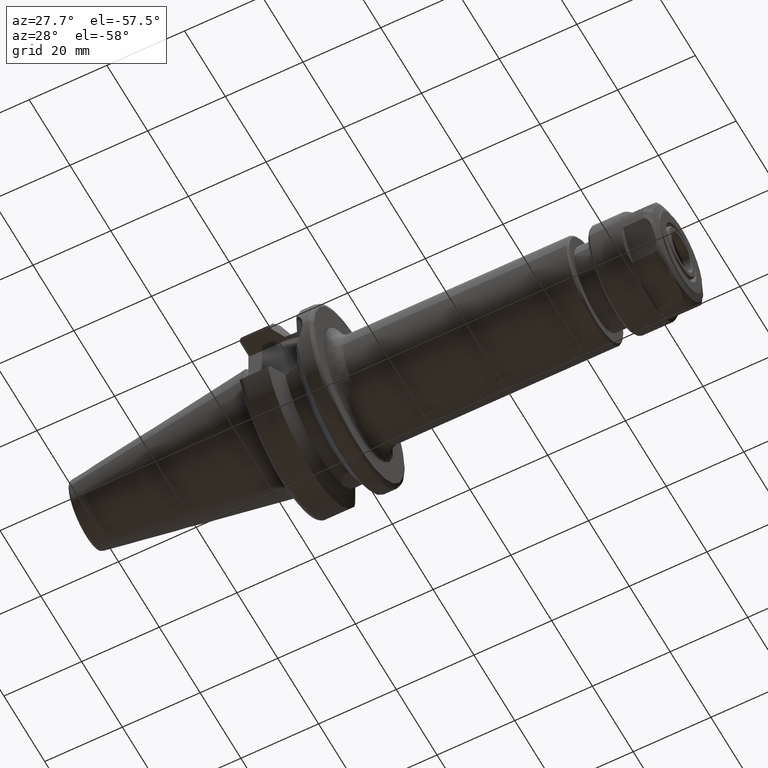
[diagram: clean part render]
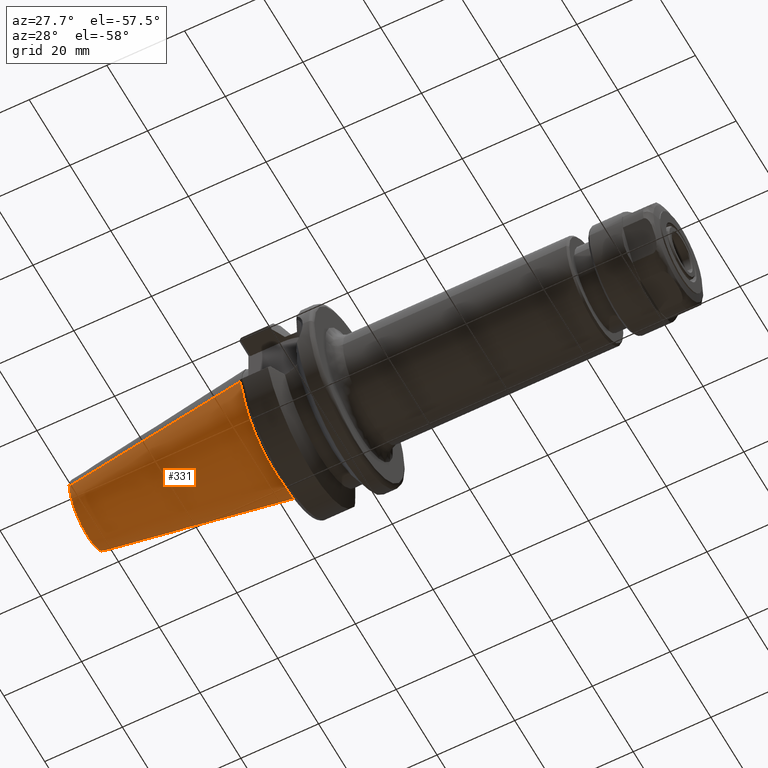
[diagram: same view with one face highlighted and labeled with its STEP entity id]
A machine part, auxiliary view. The second image highlights one B-rep face of the part: STEP entity #331.
In plain terms, the highlighted face is a freeform B-spline surface patch.
Its self-contained STEP definition (entity closure, byte-faithful):
#331=ADVANCED_FACE('',(#1846),#1845,.T.);
#1845=( BOUNDED_SURFACE() B_SPLINE_SURFACE( 2,1,((#3554,#3555),(#3556,#3557),(#3558,#3559),(#3560,#3561),(#3562,#3563)), .UNSPECIFIED.,.F.,.F.,.F.) B_SPLINE_SURFACE_WITH_KNOTS((3,2,3),(2,2),(0.00000000000E+00,5.00000000000E-01,1.00000000000E+00),(0.00000000000E+00,1.00000000000E+00), .UNSPECIFIED. ) GEOMETRIC_REPRESENTATION_ITEM() RATIONAL_B_SPLINE_SURFACE(((1.00000000000E+00,1.00000000000E+00),(7.07106781187E-01,7.07106781187E-01),(1.00000000000E+00,1.00000000000E+00),(7.07106781187E-01,7.07106781187E-01),(1.00000000000E+00,1.00000000000E+00))) REPRESENTATION_ITEM('') SURFACE() );
#1846=FACE_OUTER_BOUND('',#3564,.T.);
#3554=CARTESIAN_POINT('',(-4.79722863724E+01,-8.87898740389E+00,-2.17472470077E-15));
#3555=CARTESIAN_POINT('',(-1.00000000003E-04,-1.58750000000E+01,-3.88825358729E-15));
#3556=CARTESIAN_POINT('',(-4.79722863724E+01,-8.87898740389E+00,-8.87898740389E+00));
#3557=CARTESIAN_POINT('',(-1.00000000003E-04,-1.58750000000E+01,-1.58750000000E+01));
#3558=CARTESIAN_POINT('',(-4.79722863724E+01,1.63104352558E-15,-8.87898740389E+00));
#3559=CARTESIAN_POINT('',(-1.00000000003E-04,2.91619019047E-15,-1.58750000000E+01));
#3560=CARTESIAN_POINT('',(-4.79722863724E+01,8.87898740389E+00,-8.87898740389E+00));
#3561=CARTESIAN_POINT('',(-1.00000000003E-04,1.58750000000E+01,-1.58750000000E+01));
#3562=CARTESIAN_POINT('',(-4.79722863724E+01,8.87898740389E+00,1.08736235038E-15));
#3563=CARTESIAN_POINT('',(-1.00000000003E-04,1.58750000000E+01,1.94412679365E-15));
#3564=EDGE_LOOP('',(#4664,#4665,#4666,#4667));
#4664=ORIENTED_EDGE('',*,*,#5114,.F.);
#4665=ORIENTED_EDGE('',*,*,#5218,.F.);
#4666=ORIENTED_EDGE('',*,*,#5214,.T.);
#4667=ORIENTED_EDGE('',*,*,#5219,.T.);
#5114=EDGE_CURVE('',#6912,#6911,#6919,.T.);
#5214=EDGE_CURVE('',#7576,#7577,#7578,.T.);
#5218=EDGE_CURVE('',#7576,#6912,#7602,.T.);
#5219=EDGE_CURVE('',#7577,#6911,#7608,.T.);
#6911=VERTEX_POINT('',#9420);
#6912=VERTEX_POINT('',#9421);
#6919=CIRCLE('',#9429,1.58750000000E+01);
#7576=VERTEX_POINT('',#9846);
#7577=VERTEX_POINT('',#9847);
#7578=CIRCLE('',#9851,8.87898740389E+00);
#7602=(BOUNDED_CURVE() B_SPLINE_CURVE(1,(#9864,#9865),.UNSPECIFIED.,.F.,.F.) B_SPLINE_CURVE_WITH_KNOTS((2,2),(0.00000000000E+00,1.00000000000E+00),.UNSPECIFIED.) CURVE() GEOMETRIC_REPRESENTATION_ITEM() RATIONAL_B_SPLINE_CURVE((1.00000000000E+00,1.00000000000E+00)) REPRESENTATION_ITEM('') );
#7608=(BOUNDED_CURVE() B_SPLINE_CURVE(1,(#9866,#9867),.UNSPECIFIED.,.F.,.F.) B_SPLINE_CURVE_WITH_KNOTS((2,2),(0.00000000000E+00,1.00000000000E+00),.UNSPECIFIED.) CURVE() GEOMETRIC_REPRESENTATION_ITEM() RATIONAL_B_SPLINE_CURVE((7.50000000000E-01,7.50000000000E-01)) REPRESENTATION_ITEM('') );
#9420=CARTESIAN_POINT('',(-1.00000000003E-04,1.58750000000E+01,0.00000000000E+00));
#9421=CARTESIAN_POINT('',(-1.00000000003E-04,-1.58750000000E+01,1.18423789293E-15));
#9426=CARTESIAN_POINT('',(-1.00000000003E-04,0.00000000000E+00,0.00000000000E+00));
#9427=DIRECTION('',(1.00000000000E+00,0.00000000000E+00,0.00000000000E+00));
#9428=DIRECTION('',(0.00000000000E+00,1.00000000000E+00,-1.22464679915E-16));
#9429=AXIS2_PLACEMENT_3D('',#9426,#9427,#9428);
#9846=CARTESIAN_POINT('',(-4.79722863724E+01,-8.87898740389E+00,2.96059473233E-16));
#9847=CARTESIAN_POINT('',(-4.79722863724E+01,8.87898740389E+00,0.00000000000E+00));
#9848=CARTESIAN_POINT('',(-4.79722863724E+01,0.00000000000E+00,0.00000000000E+00));
#9849=DIRECTION('',(1.00000000000E+00,0.00000000000E+00,0.00000000000E+00));
#9850=DIRECTION('',(0.00000000000E+00,1.00000000000E+00,-1.22464679915E-16));
#9851=AXIS2_PLACEMENT_3D('',#9848,#9849,#9850);
#9864=CARTESIAN_POINT('',(-4.79722863724E+01,-8.87898740389E+00,-2.17472470077E-15));
#9865=CARTESIAN_POINT('',(-1.00000000003E-04,-1.58750000000E+01,-3.88825358729E-15));
#9866=CARTESIAN_POINT('',(-4.79722863724E+01,8.87898740389E+00,2.66453525910E-15));
#9867=CARTESIAN_POINT('',(-1.00000000003E-04,1.58750000000E+01,4.73695157173E-15));